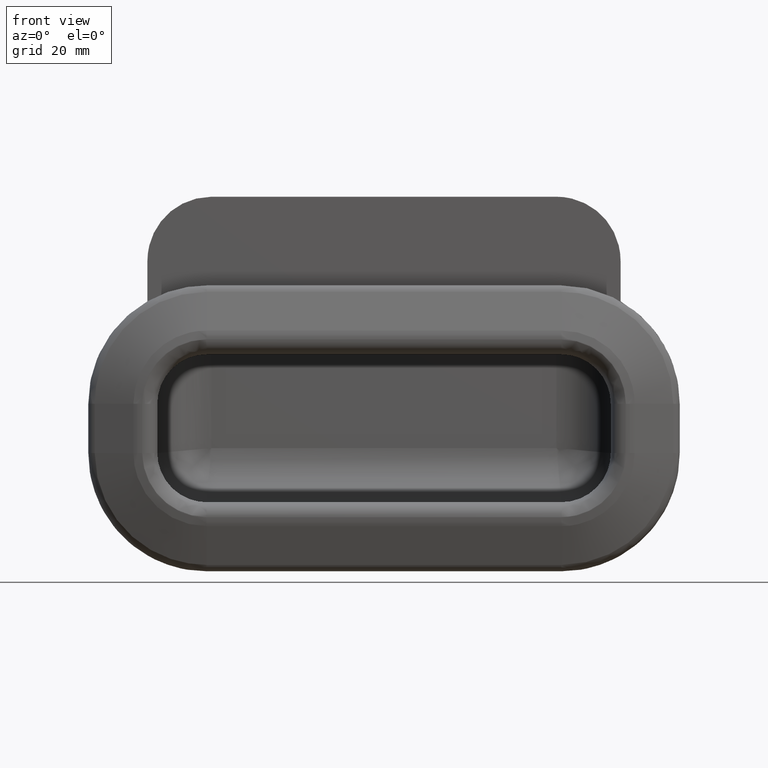
[diagram: clean part render]
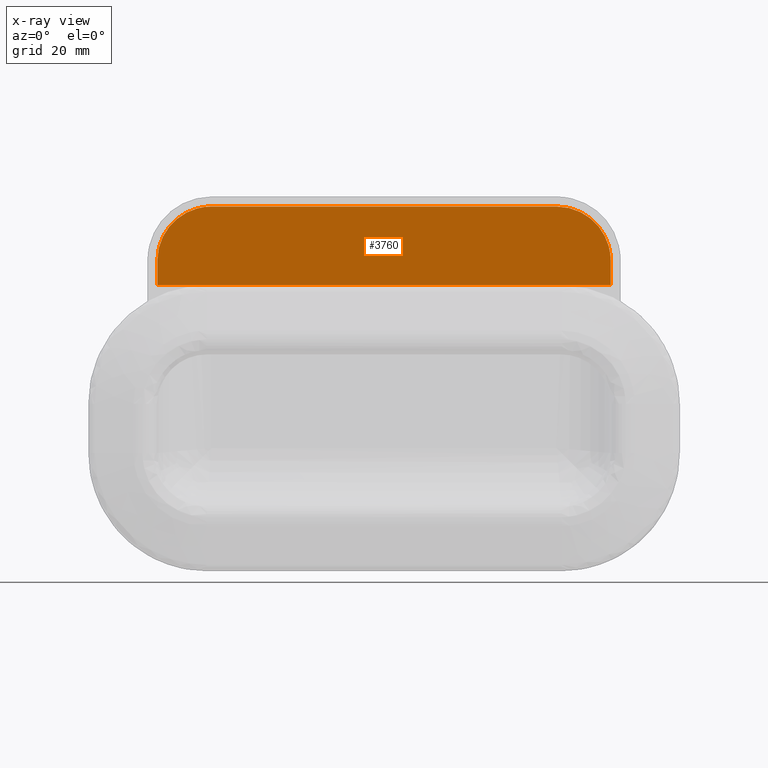
[diagram: x-ray — body ghosted, one internal face saturated and labeled with its STEP entity id]
A machine part, front view, then the same camera in x-ray: the body is ghosted and one INTERNAL B-rep face — a face not visible from any outside direction — is saturated and labeled: STEP entity #3760.
In plain terms, the highlighted face is a freeform B-spline surface patch.
Its self-contained STEP definition (entity closure, byte-faithful):
#3364=CARTESIAN_POINT('',(35.0,10.0,45.0));
#3365=VERTEX_POINT('',#3364);
#3366=CARTESIAN_POINT('',(46.0,10.0,34.0));
#3367=VERTEX_POINT('',#3366);
#3368=CARTESIAN_POINT('',(35.0,10.0,45.0));
#3369=CARTESIAN_POINT('',(46.000000000000007,10.000000000000002,45.0));
#3370=CARTESIAN_POINT('',(46.0,10.0,34.0));
#3378=(BOUNDED_CURVE()B_SPLINE_CURVE(2,(#3368,#3369,#3370),.UNSPECIFIED.,.F.,.U.)CURVE()GEOMETRIC_REPRESENTATION_ITEM()QUASI_UNIFORM_CURVE()RATIONAL_B_SPLINE_CURVE((1.0,0.707106781186548,1.0))REPRESENTATION_ITEM(''));
#3379=EDGE_CURVE('',#3365,#3367,#3378,.T.);
#3481=CARTESIAN_POINT('',(-46.0,10.0,34.0));
#3482=VERTEX_POINT('',#3481);
#3483=CARTESIAN_POINT('',(-35.0,10.0,45.0));
#3484=VERTEX_POINT('',#3483);
#3485=CARTESIAN_POINT('',(-46.0,10.0,34.0));
#3486=CARTESIAN_POINT('',(-46.000000000000007,10.000000000000002,45.0));
#3487=CARTESIAN_POINT('',(-35.0,10.0,45.0));
#3495=(BOUNDED_CURVE()B_SPLINE_CURVE(2,(#3485,#3486,#3487),.UNSPECIFIED.,.F.,.U.)CURVE()GEOMETRIC_REPRESENTATION_ITEM()QUASI_UNIFORM_CURVE()RATIONAL_B_SPLINE_CURVE((1.0,0.707106781186548,1.0))REPRESENTATION_ITEM(''));
#3496=EDGE_CURVE('',#3482,#3484,#3495,.T.);
#3644=CARTESIAN_POINT('',(-46.0,10.0,29.0));
#3645=VERTEX_POINT('',#3644);
#3659=CARTESIAN_POINT('',(46.0,10.0,29.0));
#3660=VERTEX_POINT('',#3659);
#3661=CARTESIAN_POINT('',(46.0,10.0,29.0));
#3662=CARTESIAN_POINT('',(-46.0,10.0,29.0));
#3663=QUASI_UNIFORM_CURVE('',1,(#3661,#3662),.UNSPECIFIED.,.F.,.U.);
#3664=EDGE_CURVE('',#3660,#3645,#3663,.T.);
#3728=CARTESIAN_POINT('',(35.0,10.0,45.0));
#3729=CARTESIAN_POINT('',(-35.0,10.0,45.0));
#3730=QUASI_UNIFORM_CURVE('',1,(#3728,#3729),.UNSPECIFIED.,.F.,.U.);
#3731=EDGE_CURVE('',#3365,#3484,#3730,.T.);
#3739=CARTESIAN_POINT('',(-50.595399821686172,10.0,45.799199968988901));
#3740=CARTESIAN_POINT('',(-50.595399821686172,10.0,28.200799601857661));
#3741=CARTESIAN_POINT('',(50.595402289318457,10.0,45.799199968988901));
#3742=CARTESIAN_POINT('',(50.595402289318457,10.0,28.200799601857661));
#3743=B_SPLINE_SURFACE_WITH_KNOTS('',1,1,((#3739,#3741),(#3740,#3742)),.UNSPECIFIED.,.F.,.F.,.U.,(2,2),(2,2),(0.0,17.598400367131241),(0.0,101.190802111004600),.UNSPECIFIED.);
#3744=CARTESIAN_POINT('',(-46.0,10.0,29.0));
#3745=CARTESIAN_POINT('',(-46.0,10.0,34.0));
#3746=QUASI_UNIFORM_CURVE('',1,(#3744,#3745),.UNSPECIFIED.,.F.,.U.);
#3747=EDGE_CURVE('',#3645,#3482,#3746,.T.);
#3748=ORIENTED_EDGE('',*,*,#3747,.T.);
#3749=ORIENTED_EDGE('',*,*,#3496,.T.);
#3750=ORIENTED_EDGE('',*,*,#3731,.F.);
#3751=ORIENTED_EDGE('',*,*,#3379,.T.);
#3752=CARTESIAN_POINT('',(46.0,10.0,29.0));
#3753=CARTESIAN_POINT('',(46.0,10.0,34.0));
#3754=QUASI_UNIFORM_CURVE('',1,(#3752,#3753),.UNSPECIFIED.,.F.,.U.);
#3755=EDGE_CURVE('',#3660,#3367,#3754,.T.);
#3756=ORIENTED_EDGE('',*,*,#3755,.F.);
#3757=ORIENTED_EDGE('',*,*,#3664,.T.);
#3758=EDGE_LOOP('',(#3748,#3749,#3750,#3751,#3756,#3757));
#3759=FACE_OUTER_BOUND('',#3758,.T.);
#3760=ADVANCED_FACE('',(#3759),#3743,.F.);